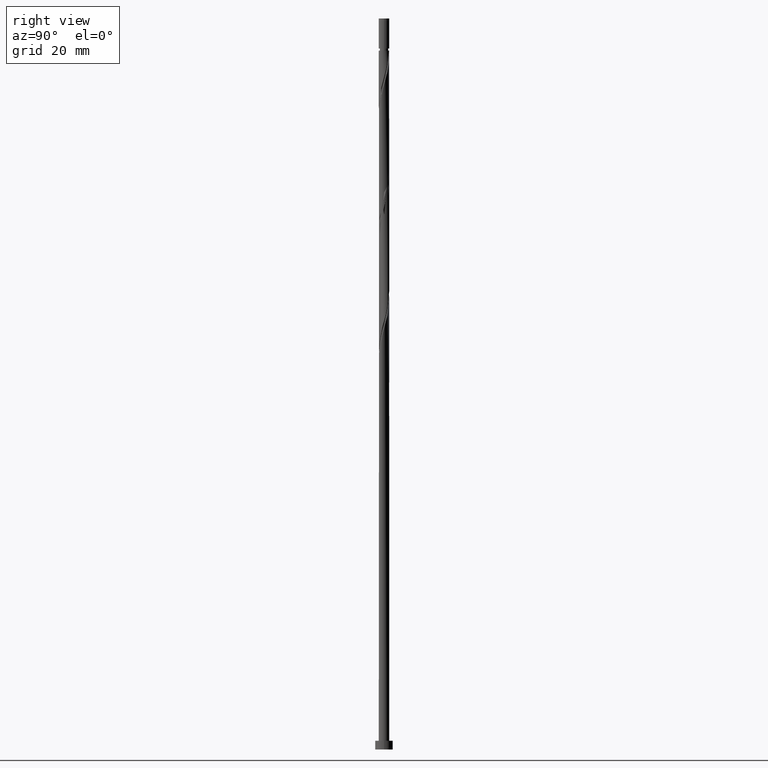
[diagram: clean part render]
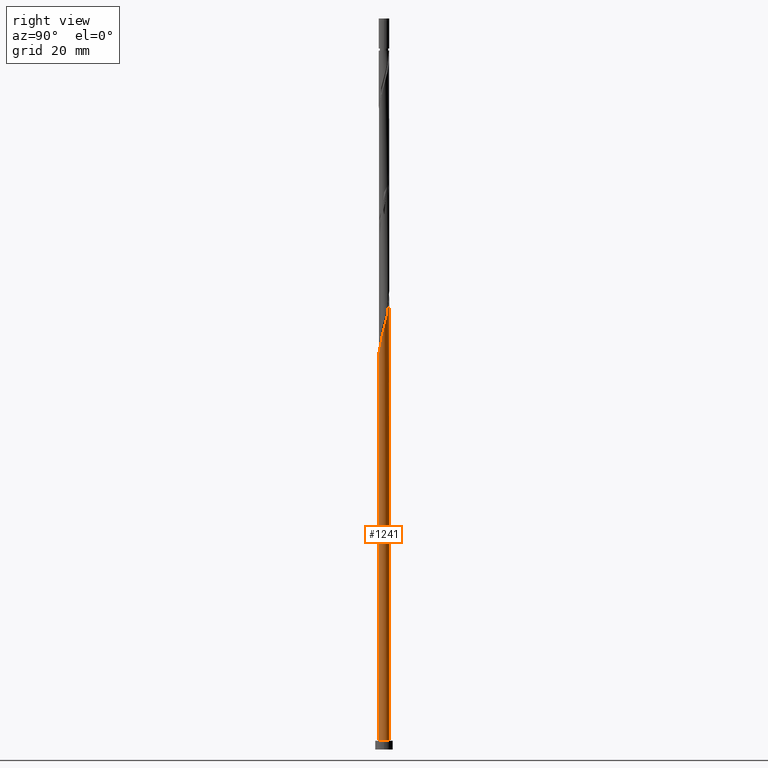
[diagram: same view with one face highlighted and labeled with its STEP entity id]
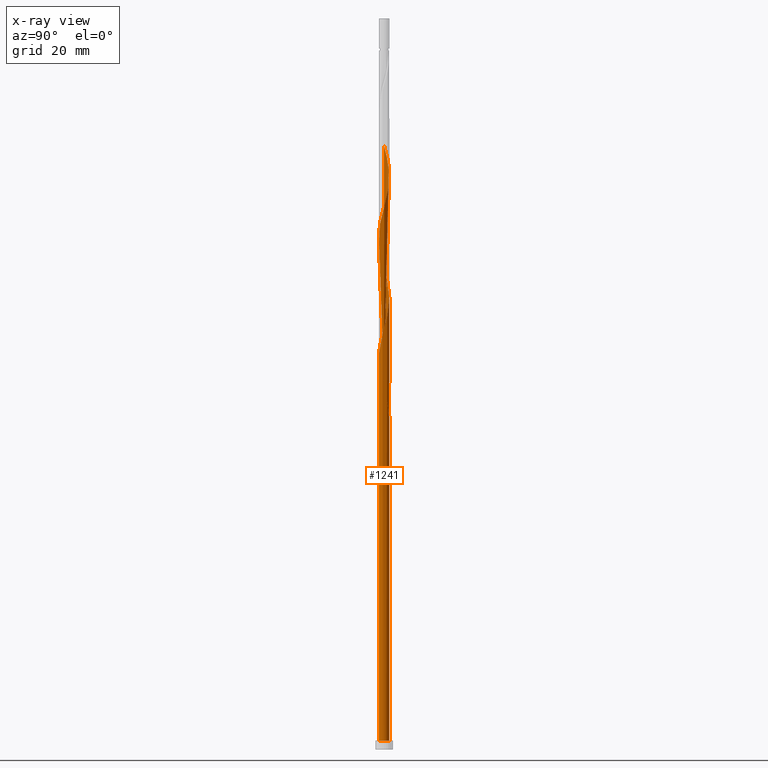
[diagram: x-ray of the same camera — body ghosted, the highlighted face saturated]
A machine part, right view. The second image highlights one B-rep face of the part: STEP entity #1241.
The next image is the same camera in x-ray: the body ghosted, the highlighted face saturated — about 0% of this face is hidden behind the body in this view.
In plain terms, the highlighted cylindrical surface (bore or boss wall) has radius 0.9 mm, axis along (-0, -0, -1).
Its self-contained STEP definition (entity closure, byte-faithful):
#6 = EDGE_CURVE ( 'NONE', #542, #677, #918, .T. ) ;
#19 = CARTESIAN_POINT ( 'NONE',  ( 0.000000000000000000, 0.000000000000000000, 1.500000000000000000 ) ) ;
#28 = CARTESIAN_POINT ( 'NONE',  ( -0.1790977386791915982, 0.8820000000000013385, 57.00156398470586083 ) ) ;
#30 = EDGE_CURVE ( 'NONE', #597, #661, #850, .T. ) ;
#38 = ORIENTED_EDGE ( 'NONE', *, *, #1153, .T. ) ;
#45 = CARTESIAN_POINT ( 'NONE',  ( -0.9000000000000011324, -0.09045340337332914704, 61.87939945197677361 ) ) ;
#51 = CARTESIAN_POINT ( 'NONE',  ( 0.5032224590115303986, 0.7596621076539842310, 96.06406398470585373 ) ) ;
#59 = CARTESIAN_POINT ( 'NONE',  ( -0.8941760922783201782, 0.1022209176141321146, 82.00156398470588215 ) ) ;
#65 = CARTESIAN_POINT ( 'NONE',  ( -0.5032224590115302876, -0.7596621076539842310, 64.81406398470588215 ) ) ;
#70 = CARTESIAN_POINT ( 'NONE',  ( -0.4428850604632759147, 0.7834876024663330885, 58.04323065137253224 ) ) ;
#72 = CARTESIAN_POINT ( 'NONE',  ( 0.8941760922783202892, -0.1022209176141322257, 71.58489731803921075 ) ) ;
#79 = CARTESIAN_POINT ( 'NONE',  ( 0.7133415000367590020, 0.5669773058811188315, 95.02239731803921075 ) ) ;
#83 = CARTESIAN_POINT ( 'NONE',  ( -0.9000000000000000222, 0.000000000000000000, 125.0000000000000000 ) ) ;
#85 = CARTESIAN_POINT ( 'NONE',  ( -0.6082819795241442007, 0.6633197067675514758, 60.12656398470586794 ) ) ;
#92 = CARTESIAN_POINT ( 'NONE',  ( -0.2438444975412146498, 0.8779858894525452984, 58.56406398470587504 ) ) ;
#113 = DIRECTION ( 'NONE',  ( -0.000000000000000000, -0.000000000000000000, -1.000000000000000000 ) ) ;
#115 = CARTESIAN_POINT ( 'NONE',  ( 0.000000000000000000, 0.000000000000000000, 1.500000000000000000 ) ) ;
#137 = VECTOR ( 'NONE', #658, 1000.000000000000000 ) ;
#150 = DIRECTION ( 'NONE',  ( 0.000000000000000000, 0.000000000000000000, 1.000000000000000000 ) ) ;
#157 = EDGE_CURVE ( 'NONE', #761, #896, #515, .T. ) ;
#172 = CARTESIAN_POINT ( 'NONE',  ( -0.7596621076539842310, 0.5032224590115302876, 80.43906398470585373 ) ) ;
#176 = CARTESIAN_POINT ( 'NONE',  ( -0.9000000000000013545, -8.958378912965330938E-16, 61.54509487656896027 ) ) ;
#178 = CARTESIAN_POINT ( 'NONE',  ( 0.7133415000367590020, 0.5669773058811188315, 74.18906398470589636 ) ) ;
#180 = CARTESIAN_POINT ( 'NONE',  ( 0.000000000000000000, 0.000000000000000000, 125.0000000000000000 ) ) ;
#185 = CARTESIAN_POINT ( 'NONE',  ( 0.8188239985532647092, -0.3735334782763726214, 70.54323065137253934 ) ) ;
#192 = CARTESIAN_POINT ( 'NONE',  ( 0.7834876024663331995, 0.4428850604632758037, 94.50156398470585373 ) ) ;
#196 = LINE ( 'NONE', #83, #137 ) ;
#206 = CARTESIAN_POINT ( 'NONE',  ( -0.3735334782763723993, 0.8188239985532648202, 59.08489731803918943 ) ) ;
#225 = VERTEX_POINT ( 'NONE', #28 ) ;
#258 = AXIS2_PLACEMENT_3D ( 'NONE', #379, #720, #965 ) ;
#272 = CARTESIAN_POINT ( 'NONE',  ( -0.3187928150454329979, 0.8536337048959073970, 57.52239731803919653 ) ) ;
#280 = CARTESIAN_POINT ( 'NONE',  ( 0.03940266231295046218, -0.9103662951040949469, 66.89739731803921075 ) ) ;
#287 = CARTESIAN_POINT ( 'NONE',  ( 0.4428850604632758037, -0.7834876024663331995, 89.29323065137252513 ) ) ;
#294 = CARTESIAN_POINT ( 'NONE',  ( -0.7133415000367587799, -0.5669773058811188315, 84.60573065137253934 ) ) ;
#300 = CARTESIAN_POINT ( 'NONE',  ( 0.1790977386791917370, -0.8820000000000013385, 67.41823065137253934 ) ) ;
#307 = CARTESIAN_POINT ( 'NONE',  ( -0.8536337048959073970, -0.3187928150454329423, 83.56406398470585373 ) ) ;
#323 = CARTESIAN_POINT ( 'NONE',  ( -0.7596621076539842310, 0.5032224590115302876, 101.2723973180391823 ) ) ;
#329 = CARTESIAN_POINT ( 'NONE',  ( -0.9000000000000000222, 0.000000000000000000, 125.0000000000000000 ) ) ;
#374 = VECTOR ( 'NONE', #113, 1000.000000000000000 ) ;
#375 = ORIENTED_EDGE ( 'NONE', *, *, #157, .F. ) ;
#379 = CARTESIAN_POINT ( 'NONE',  ( 0.000000000000000000, 0.000000000000000000, 57.00156398470591768 ) ) ;
#383 = CARTESIAN_POINT ( 'NONE',  ( -0.8820000000000013385, -0.1790977386791917925, 62.20989731803921785 ) ) ;
#391 = CARTESIAN_POINT ( 'NONE',  ( 0.3735334782763727324, 0.8188239985532647092, 96.58489731803922496 ) ) ;
#396 = CARTESIAN_POINT ( 'NONE',  ( -0.1790977386791915982, 0.8820000000000013385, 57.00156398470586083 ) ) ;
#398 = CARTESIAN_POINT ( 'NONE',  ( 0.03940266231295046218, -0.9103662951040949469, 87.73073065137255355 ) ) ;
#405 = CARTESIAN_POINT ( 'NONE',  ( 0.6633197067675512537, -0.6082819795241444227, 69.50156398470586794 ) ) ;
#411 = CARTESIAN_POINT ( 'NONE',  ( 0.7596621076539842310, -0.5032224590115303986, 90.85573065137252513 ) ) ;
#418 = CARTESIAN_POINT ( 'NONE',  ( -0.6082819795241444227, -0.6633197067675512537, 64.29323065137253934 ) ) ;
#432 = CARTESIAN_POINT ( 'NONE',  ( -0.8188239985532648202, 0.3735334782763725103, 101.7932306513725109 ) ) ;
#447 = CARTESIAN_POINT ( 'NONE',  ( 0.2438444975412148441, 0.8779858894525452984, 97.10573065137251092 ) ) ;
#460 = CARTESIAN_POINT ( 'NONE',  ( 0.1790977386791919868, 0.8820000000000008944, 57.00156398470586083 ) ) ;
#467 = CARTESIAN_POINT ( 'NONE',  ( -0.1022209176141320314, 0.8941760922783198451, 58.04323065137254645 ) ) ;
#493 = CYLINDRICAL_SURFACE ( 'NONE', #1310, 0.9000000000000000222 ) ;
#497 = CARTESIAN_POINT ( 'NONE',  ( -0.6633197067675515868, 0.6082819795241444227, 79.91823065137256776 ) ) ;
#506 = CARTESIAN_POINT ( 'NONE',  ( 0.1790977386791917370, -0.8820000000000013385, 88.25156398470588215 ) ) ;
#512 = CIRCLE ( 'NONE', #258, 0.9000000000000000222 ) ;
#513 = CARTESIAN_POINT ( 'NONE',  ( 0.3187928150454329423, -0.8536337048959076190, 67.93906398470585373 ) ) ;
#515 =( BOUNDED_CURVE ( )  B_SPLINE_CURVE ( 2, ( #668, #793, #556, #760, #1001, #646, #85, #1433, #206, #92, #467, #1255, #460 ),
 .UNSPECIFIED., .F., .T. ) 
 B_SPLINE_CURVE_WITH_KNOTS ( ( 3, 2, 2, 2, 2, 2, 3 ),
 ( 0.9295322023138551382, 0.9375000000000000000, 0.9499999999999999556, 0.9625000000000000222, 0.9749999999999999778, 0.9875000000000000444, 1.000000000000000000 ),
 .UNSPECIFIED. ) 
 CURVE ( )  GEOMETRIC_REPRESENTATION_ITEM ( )  RATIONAL_B_SPLINE_CURVE ( ( 0.9039174447099480592, 0.9019565955404772462, 0.9090909090909258250, 0.8978984914501417780, 0.9090909090909258250, 0.8978984914501417780, 0.9090909090909258250, 0.8978984914501417780, 0.9090909090909258250, 0.8978984914501417780, 0.9090909090909258250, 0.8978984914501417780, 0.9090909090909258250 ) ) 
 REPRESENTATION_ITEM ( '' )  );
#521 = CARTESIAN_POINT ( 'NONE',  ( -0.2438444975412148441, -0.8779858894525452984, 86.68906398470585373 ) ) ;
#528 = CARTESIAN_POINT ( 'NONE',  ( 0.6082819795241446448, 0.6633197067675514758, 95.54323065137252513 ) ) ;
#542 = VERTEX_POINT ( 'NONE', #1060 ) ;
#556 = CARTESIAN_POINT ( 'NONE',  ( -0.8820000000000008944, 0.1790977386791918202, 62.20989731803918943 ) ) ;
#557 = EDGE_CURVE ( 'NONE', #225, #542, #1367, .T. ) ;
#566 = DIRECTION ( 'NONE',  ( 1.000000000000000000, 0.000000000000000000, 0.000000000000000000 ) ) ;
#597 = VERTEX_POINT ( 'NONE', #967 ) ;
#611 = CARTESIAN_POINT ( 'NONE',  ( 0.9103662951040949469, 0.03940266231295040666, 92.93906398470585373 ) ) ;
#618 = CARTESIAN_POINT ( 'NONE',  ( -0.8779858894525452984, 0.2438444975412148163, 81.48073065137252513 ) ) ;
#624 = CARTESIAN_POINT ( 'NONE',  ( 0.5032224590115303986, 0.7596621076539842310, 75.23073065137255355 ) ) ;
#626 = DIRECTION ( 'NONE',  ( -0.000000000000000000, -0.000000000000000000, -1.000000000000000000 ) ) ;
#631 = CARTESIAN_POINT ( 'NONE',  ( 0.2438444975412148441, 0.8779858894525452984, 76.27239731803919653 ) ) ;
#638 = CARTESIAN_POINT ( 'NONE',  ( 0.5669773058811188315, -0.7133415000367587799, 68.98073065137251092 ) ) ;
#644 = LINE ( 'NONE', #329, #374 ) ;
#646 = CARTESIAN_POINT ( 'NONE',  ( -0.7133415000367582248, 0.5669773058811188315, 60.64739731803919653 ) ) ;
#658 = DIRECTION ( 'NONE',  ( -0.000000000000000000, -0.000000000000000000, -1.000000000000000000 ) ) ;
#661 = VERTEX_POINT ( 'NONE', #1425 ) ;
#668 = CARTESIAN_POINT ( 'NONE',  ( -0.9000000000000010214, 1.008286162170575790E-15, 62.87469975950946122 ) ) ;
#676 = CARTESIAN_POINT ( 'NONE',  ( -0.6633197067675515868, 0.6082819795241444227, 100.7515639847058537 ) ) ;
#677 = VERTEX_POINT ( 'NONE', #1277 ) ;
#689 = CARTESIAN_POINT ( 'NONE',  ( -0.7834876024663331995, -0.4428850604632759147, 63.25156398470586794 ) ) ;
#714 = CARTESIAN_POINT ( 'NONE',  ( -0.6633197067675515868, 0.6082819795241444227, 59.08489731803920364 ) ) ;
#716 = ORIENTED_EDGE ( 'NONE', *, *, #1441, .T. ) ;
#720 = DIRECTION ( 'NONE',  ( 0.000000000000000000, -5.782411586589363713E-14, -1.000000000000000000 ) ) ;
#722 = CARTESIAN_POINT ( 'NONE',  ( -0.8188239985532648202, 0.3735334782763725103, 60.12656398470587504 ) ) ;
#724 = CARTESIAN_POINT ( 'NONE',  ( 0.4428850604632758037, -0.7834876024663331995, 68.45989731803922496 ) ) ;
#731 = CARTESIAN_POINT ( 'NONE',  ( 0.7596621076539842310, -0.5032224590115303986, 70.02239731803919653 ) ) ;
#737 = CARTESIAN_POINT ( 'NONE',  ( -0.6082819795241444227, -0.6633197067675512537, 85.12656398470585373 ) ) ;
#741 = CARTESIAN_POINT ( 'NONE',  ( -0.9000000000000012434, 0.05127636370178974279, 61.35558378736165253 ) ) ;
#744 = AXIS2_PLACEMENT_3D ( 'NONE', #19, #150, #1148 ) ;
#745 = CARTESIAN_POINT ( 'NONE',  ( 0.8941760922783202892, -0.1022209176141322257, 92.41823065137253934 ) ) ;
#752 = CARTESIAN_POINT ( 'NONE',  ( -0.5032224590115302876, -0.7596621076539842310, 85.64739731803918232 ) ) ;
#760 = CARTESIAN_POINT ( 'NONE',  ( -0.8536337048959073970, 0.3187928150454330534, 61.68906398470587504 ) ) ;
#761 = VERTEX_POINT ( 'NONE', #1326 ) ;
#777 = CARTESIAN_POINT ( 'NONE',  ( -0.03940266231295034421, 0.9103662951040949469, 98.14739731803919653 ) ) ;
#786 = CARTESIAN_POINT ( 'NONE',  ( -0.9000000000000011324, -4.235551536255573486E-16, 103.2117615432356246 ) ) ;
#787 = ORIENTED_EDGE ( 'NONE', *, *, #557, .F. ) ;
#793 = CARTESIAN_POINT ( 'NONE',  ( -0.9000000000000012434, 0.09045340337332848091, 62.54039518410163367 ) ) ;
#821 = EDGE_LOOP ( 'NONE', ( #1357, #995, #1279, #1242, #716, #931, #787, #38, #375 ) ) ;
#828 = EDGE_CURVE ( 'NONE', #677, #761, #196, .T. ) ;
#829 = CARTESIAN_POINT ( 'NONE',  ( -0.8536337048959073970, -0.3187928150454329423, 62.73073065137253934 ) ) ;
#835 = CARTESIAN_POINT ( 'NONE',  ( 0.6082819795241446448, 0.6633197067675514758, 74.70989731803919653 ) ) ;
#840 = CARTESIAN_POINT ( 'NONE',  ( -0.5669773058811188315, 0.7133415000367587799, 58.56406398470586794 ) ) ;
#842 = CARTESIAN_POINT ( 'NONE',  ( 0.8779858894525452984, -0.2438444975412148441, 71.06406398470585373 ) ) ;
#849 = CARTESIAN_POINT ( 'NONE',  ( -0.4428850604632759147, 0.7834876024663330885, 78.87656398470585373 ) ) ;
#850 = CIRCLE ( 'NONE', #1131, 0.9000000000000000222 ) ;
#852 = FACE_OUTER_BOUND ( 'NONE', #821, .T. ) ;
#856 = CARTESIAN_POINT ( 'NONE',  ( -0.3735334782763726214, -0.8188239985532647092, 86.16823065137253934 ) ) ;
#863 = CARTESIAN_POINT ( 'NONE',  ( 0.8820000000000013385, 0.1790977386791916814, 72.62656398470586794 ) ) ;
#870 = EDGE_CURVE ( 'NONE', #542, #597, #644, .T. ) ;
#895 = CARTESIAN_POINT ( 'NONE',  ( -0.3187928150454329979, 0.8536337048959073970, 99.18906398470585373 ) ) ;
#896 = VERTEX_POINT ( 'NONE', #1333 ) ;
#918 =( BOUNDED_CURVE ( )  B_SPLINE_CURVE ( 2, ( #1046, #45, #383, #829, #689, #1077, #418, #65, #1188, #1407, #1285, #280, #300, #513, #724, #638, #405, #731, #185, #842, #72, #961, #863, #1181, #1083, #178, #835, #624, #1314, #631, #1399, #1070, #1413, #1292, #849, #1174, #497, #172, #1062, #618, #59, #947, #1299, #307, #975, #294, #737, #752, #856, #521, #969, #398, #506, #1420, #287, #1202, #954, #411, #1306, #1427, #745, #611, #1195, #1054, #192, #79, #528, #51, #391, #447, #1121, #777, #1350, #895, #1440, #1210, #676, #323, #432, #982, #1343, #1217, #786 ),
 .UNSPECIFIED., .F., .T. ) 
 B_SPLINE_CURVE_WITH_KNOTS ( ( 3, 2, 2, 2, 2, 2, 2, 2, 2, 2, 2, 2, 2, 2, 2, 2, 2, 2, 2, 2, 2, 2, 2, 2, 2, 2, 2, 2, 2, 2, 2, 2, 2, 2, 2, 2, 2, 2, 2, 2, 2, 3 ),
 ( 0.05453220231385520755, 0.06250000000000000000, 0.07499999999999995559, 0.08750000000000002220, 0.09999999999999997780, 0.1125000000000000444, 0.1250000000000000000, 0.1374999999999999556, 0.1500000000000000222, 0.1624999999999999778, 0.1750000000000000444, 0.1875000000000000000, 0.1999999999999999556, 0.2125000000000000222, 0.2249999999999999778, 0.2375000000000000444, 0.2500000000000000000, 0.2624999999999999556, 0.2750000000000000222, 0.2874999999999999778, 0.3000000000000000444, 0.3125000000000000000, 0.3249999999999999556, 0.3375000000000000222, 0.3499999999999999778, 0.3625000000000000444, 0.3750000000000000000, 0.3874999999999999556, 0.4000000000000000222, 0.4124999999999999778, 0.4250000000000000444, 0.4375000000000000000, 0.4499999999999999556, 0.4625000000000000222, 0.4749999999999999778, 0.4875000000000000444, 0.5000000000000000000, 0.5124999999999999556, 0.5250000000000000222, 0.5374999999999999778, 0.5500000000000000444, 0.5545322023138552492 ),
 .UNSPECIFIED. ) 
 CURVE ( )  GEOMETRIC_REPRESENTATION_ITEM ( )  RATIONAL_B_SPLINE_CURVE ( ( 0.9039174447099491694, 0.9019565955404784674, 0.9090909090909268242, 0.8978984914501428882, 0.9090909090909268242, 0.8978984914501428882, 0.9090909090909268242, 0.8978984914501428882, 0.9090909090909268242, 0.8978984914501428882, 0.9090909090909268242, 0.8978984914501428882, 0.9090909090909268242, 0.8978984914501428882, 0.9090909090909268242, 0.8978984914501428882, 0.9090909090909268242, 0.8978984914501428882, 0.9090909090909268242, 0.8978984914501428882, 0.9090909090909268242, 0.8978984914501428882, 0.9090909090909268242, 0.8978984914501428882, 0.9090909090909268242, 0.8978984914501428882, 0.9090909090909268242, 0.8978984914501428882, 0.9090909090909268242, 0.8978984914501428882, 0.9090909090909268242, 0.8978984914501428882, 0.9090909090909268242, 0.8978984914501428882, 0.9090909090909268242, 0.8978984914501428882, 0.9090909090909268242, 0.8978984914501428882, 0.9090909090909268242, 0.8978984914501428882, 0.9090909090909268242, 0.8978984914501428882, 0.9090909090909268242, 0.8978984914501428882, 0.9090909090909268242, 0.8978984914501428882, 0.9090909090909268242, 0.8978984914501428882, 0.9090909090909268242, 0.8978984914501428882, 0.9090909090909268242, 0.8978984914501428882, 0.9090909090909268242, 0.8978984914501428882, 0.9090909090909268242, 0.8978984914501428882, 0.9090909090909268242, 0.8978984914501428882, 0.9090909090909268242, 0.8978984914501428882, 0.9090909090909268242, 0.8978984914501428882, 0.9090909090909268242, 0.8978984914501428882, 0.9090909090909268242, 0.8978984914501428882, 0.9090909090909268242, 0.8978984914501428882, 0.9090909090909268242, 0.8978984914501428882, 0.9090909090909268242, 0.8978984914501428882, 0.9090909090909268242, 0.8978984914501428882, 0.9090909090909268242, 0.8978984914501428882, 0.9090909090909268242, 0.8978984914501428882, 0.9090909090909268242, 0.8978984914501428882, 0.9090909090909268242, 0.9050328050005911340, 0.9039174447099489473 ) ) 
 REPRESENTATION_ITEM ( '' )  );
#931 = ORIENTED_EDGE ( 'NONE', *, *, #870, .F. ) ;
#947 = CARTESIAN_POINT ( 'NONE',  ( -0.9103662951040950579, -0.03940266231295056626, 82.52239731803921075 ) ) ;
#954 = CARTESIAN_POINT ( 'NONE',  ( 0.6633197067675512537, -0.6082819795241444227, 90.33489731803919653 ) ) ;
#961 = CARTESIAN_POINT ( 'NONE',  ( 0.9103662951040949469, 0.03940266231295040666, 72.10573065137252513 ) ) ;
#965 = DIRECTION ( 'NONE',  ( 0.000000000000000000, 1.000000000000000000, -6.167905692361980640E-14 ) ) ;
#967 = CARTESIAN_POINT ( 'NONE',  ( -0.9000000000000000222, 0.000000000000000000, 1.500000000000000000 ) ) ;
#969 = CARTESIAN_POINT ( 'NONE',  ( -0.1022209176141321840, -0.8941760922783202892, 87.20989731803921075 ) ) ;
#975 = CARTESIAN_POINT ( 'NONE',  ( -0.7834876024663331995, -0.4428850604632759147, 84.08489731803916811 ) ) ;
#982 = CARTESIAN_POINT ( 'NONE',  ( -0.8779858894525452984, 0.2438444975412148163, 102.3140639847058821 ) ) ;
#995 = ORIENTED_EDGE ( 'NONE', *, *, #6, .F. ) ;
#1001 = CARTESIAN_POINT ( 'NONE',  ( -0.7834876024663328664, 0.4428850604632759702, 61.16823065137253224 ) ) ;
#1046 = CARTESIAN_POINT ( 'NONE',  ( -0.9000000000000013545, -8.958378912965330938E-16, 61.54509487656896027 ) ) ;
#1054 = CARTESIAN_POINT ( 'NONE',  ( 0.8536337048959076190, 0.3187928150454328313, 93.98073065137251092 ) ) ;
#1060 = CARTESIAN_POINT ( 'NONE',  ( -0.9000000000000013545, -8.958378912965330938E-16, 61.54509487656895317 ) ) ;
#1062 = CARTESIAN_POINT ( 'NONE',  ( -0.8188239985532648202, 0.3735334782763725103, 80.95989731803921075 ) ) ;
#1070 = CARTESIAN_POINT ( 'NONE',  ( -0.03940266231295034421, 0.9103662951040949469, 77.31406398470585373 ) ) ;
#1077 = CARTESIAN_POINT ( 'NONE',  ( -0.7133415000367587799, -0.5669773058811188315, 63.77239731803918943 ) ) ;
#1083 = CARTESIAN_POINT ( 'NONE',  ( 0.7834876024663331995, 0.4428850604632758037, 73.66823065137255355 ) ) ;
#1105 = DIRECTION ( 'NONE',  ( 0.000000000000000000, 0.000000000000000000, 1.000000000000000000 ) ) ;
#1121 = CARTESIAN_POINT ( 'NONE',  ( 0.1022209176141322673, 0.8941760922783202892, 97.62656398470588215 ) ) ;
#1131 = AXIS2_PLACEMENT_3D ( 'NONE', #115, #1105, #566 ) ;
#1148 = DIRECTION ( 'NONE',  ( 1.000000000000000000, 0.000000000000000000, 0.000000000000000000 ) ) ;
#1153 = EDGE_CURVE ( 'NONE', #225, #896, #512, .T. ) ;
#1166 = CARTESIAN_POINT ( 'NONE',  ( -0.8779858894525452984, 0.2438444975412148163, 60.64739731803921075 ) ) ;
#1174 = CARTESIAN_POINT ( 'NONE',  ( -0.5669773058811188315, 0.7133415000367587799, 79.39739731803921075 ) ) ;
#1179 = CARTESIAN_POINT ( 'NONE',  ( -0.8941760922783201782, 0.1022209176141321146, 61.16823065137253224 ) ) ;
#1181 = CARTESIAN_POINT ( 'NONE',  ( 0.8536337048959076190, 0.3187928150454328313, 73.14739731803919653 ) ) ;
#1188 = CARTESIAN_POINT ( 'NONE',  ( -0.3735334782763726214, -0.8188239985532647092, 65.33489731803919653 ) ) ;
#1195 = CARTESIAN_POINT ( 'NONE',  ( 0.8820000000000013385, 0.1790977386791916814, 93.45989731803921075 ) ) ;
#1202 = CARTESIAN_POINT ( 'NONE',  ( 0.5669773058811188315, -0.7133415000367587799, 89.81406398470585373 ) ) ;
#1210 = CARTESIAN_POINT ( 'NONE',  ( -0.5669773058811188315, 0.7133415000367587799, 100.2307306513725251 ) ) ;
#1217 = CARTESIAN_POINT ( 'NONE',  ( -0.9000000000000012434, 0.05127636370178927094, 103.0222504540283239 ) ) ;
#1241 = ADVANCED_FACE ( 'NONE', ( #852 ), #493, .T. ) ;
#1242 = ORIENTED_EDGE ( 'NONE', *, *, #30, .T. ) ;
#1255 = CARTESIAN_POINT ( 'NONE',  ( 0.03940266231295062871, 0.9103662951040949469, 57.52239731803919653 ) ) ;
#1277 = CARTESIAN_POINT ( 'NONE',  ( -0.9000000000000011324, -4.235551536255573486E-16, 103.2117615432356104 ) ) ;
#1279 = ORIENTED_EDGE ( 'NONE', *, *, #870, .T. ) ;
#1283 = CARTESIAN_POINT ( 'NONE',  ( -0.7596621076539842310, 0.5032224590115302876, 59.60573065137251803 ) ) ;
#1285 = CARTESIAN_POINT ( 'NONE',  ( -0.1022209176141321840, -0.8941760922783202892, 66.37656398470588215 ) ) ;
#1292 = CARTESIAN_POINT ( 'NONE',  ( -0.3187928150454329979, 0.8536337048959073970, 78.35573065137252513 ) ) ;
#1299 = CARTESIAN_POINT ( 'NONE',  ( -0.8820000000000013385, -0.1790977386791917925, 83.04323065137252513 ) ) ;
#1306 = CARTESIAN_POINT ( 'NONE',  ( 0.8188239985532647092, -0.3735334782763726214, 91.37656398470589636 ) ) ;
#1310 = AXIS2_PLACEMENT_3D ( 'NONE', #180, #626, #1393 ) ;
#1314 = CARTESIAN_POINT ( 'NONE',  ( 0.3735334782763727324, 0.8188239985532647092, 75.75156398470588215 ) ) ;
#1326 = CARTESIAN_POINT ( 'NONE',  ( -0.9000000000000010214, 1.008286162170575790E-15, 62.87469975950946122 ) ) ;
#1333 = CARTESIAN_POINT ( 'NONE',  ( 0.1790977386791919868, 0.8820000000000008944, 57.00156398470586083 ) ) ;
#1343 = CARTESIAN_POINT ( 'NONE',  ( -0.8941760922783201782, 0.1022209176141321146, 102.8348973180392107 ) ) ;
#1350 = CARTESIAN_POINT ( 'NONE',  ( -0.1790977386791915982, 0.8820000000000013385, 98.66823065137255355 ) ) ;
#1357 = ORIENTED_EDGE ( 'NONE', *, *, #828, .F. ) ;
#1367 =( BOUNDED_CURVE ( )  B_SPLINE_CURVE ( 2, ( #396, #272, #70, #840, #714, #1283, #722, #1166, #1179, #741, #176 ),
 .UNSPECIFIED., .F., .T. ) 
 B_SPLINE_CURVE_WITH_KNOTS ( ( 3, 2, 2, 2, 2, 3 ),
 ( 0.000000000000000000, 0.01249999999999995386, 0.02500000000000002220, 0.03749999999999997780, 0.05000000000000004441, 0.05453220231385520755 ),
 .UNSPECIFIED. ) 
 CURVE ( )  GEOMETRIC_REPRESENTATION_ITEM ( )  RATIONAL_B_SPLINE_CURVE ( ( 0.9090909090909268242, 0.8978984914501428882, 0.9090909090909268242, 0.8978984914501428882, 0.9090909090909268242, 0.8978984914501428882, 0.9090909090909268242, 0.8978984914501428882, 0.9090909090909268242, 0.9050328050005912450, 0.9039174447099491694 ) ) 
 REPRESENTATION_ITEM ( '' )  );
#1381 = CIRCLE ( 'NONE', #744, 0.9000000000000000222 ) ;
#1393 = DIRECTION ( 'NONE',  ( -1.000000000000000000, 0.000000000000000000, 0.000000000000000000 ) ) ;
#1399 = CARTESIAN_POINT ( 'NONE',  ( 0.1022209176141322673, 0.8941760922783202892, 76.79323065137252513 ) ) ;
#1407 = CARTESIAN_POINT ( 'NONE',  ( -0.2438444975412148441, -0.8779858894525452984, 65.85573065137252513 ) ) ;
#1413 = CARTESIAN_POINT ( 'NONE',  ( -0.1790977386791915982, 0.8820000000000013385, 77.83489731803921075 ) ) ;
#1420 = CARTESIAN_POINT ( 'NONE',  ( 0.3187928150454329423, -0.8536337048959076190, 88.77239731803919653 ) ) ;
#1425 = CARTESIAN_POINT ( 'NONE',  ( 0.9000000000000000222, 0.000000000000000000, 1.500000000000000000 ) ) ;
#1427 = CARTESIAN_POINT ( 'NONE',  ( 0.8779858894525452984, -0.2438444975412148441, 91.89739731803919653 ) ) ;
#1433 = CARTESIAN_POINT ( 'NONE',  ( -0.5032224590115301766, 0.7596621076539841200, 59.60573065137253934 ) ) ;
#1440 = CARTESIAN_POINT ( 'NONE',  ( -0.4428850604632759147, 0.7834876024663330885, 99.70989731803922496 ) ) ;
#1441 = EDGE_CURVE ( 'NONE', #661, #597, #1381, .T. ) ;